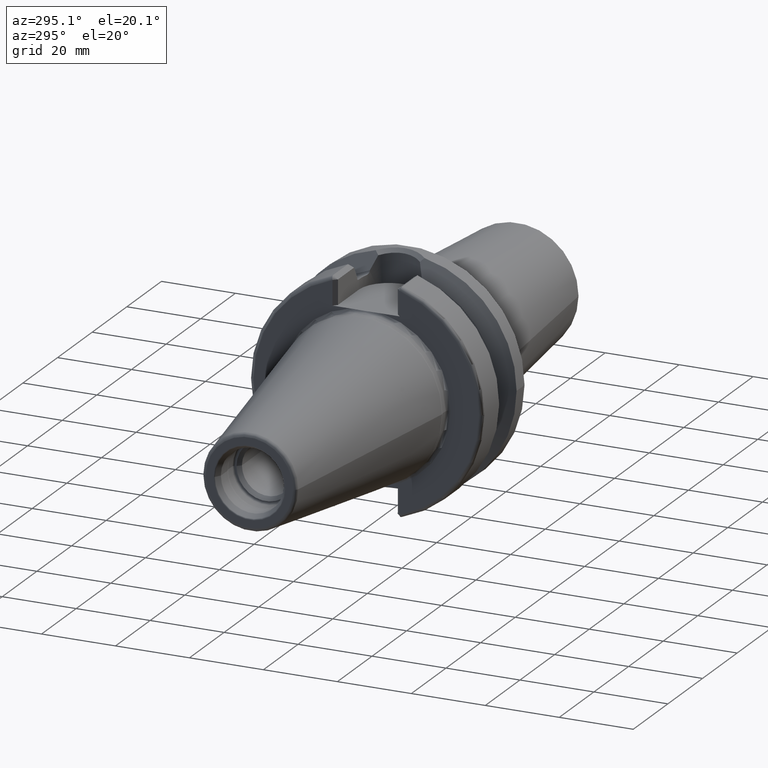
[diagram: clean part render]
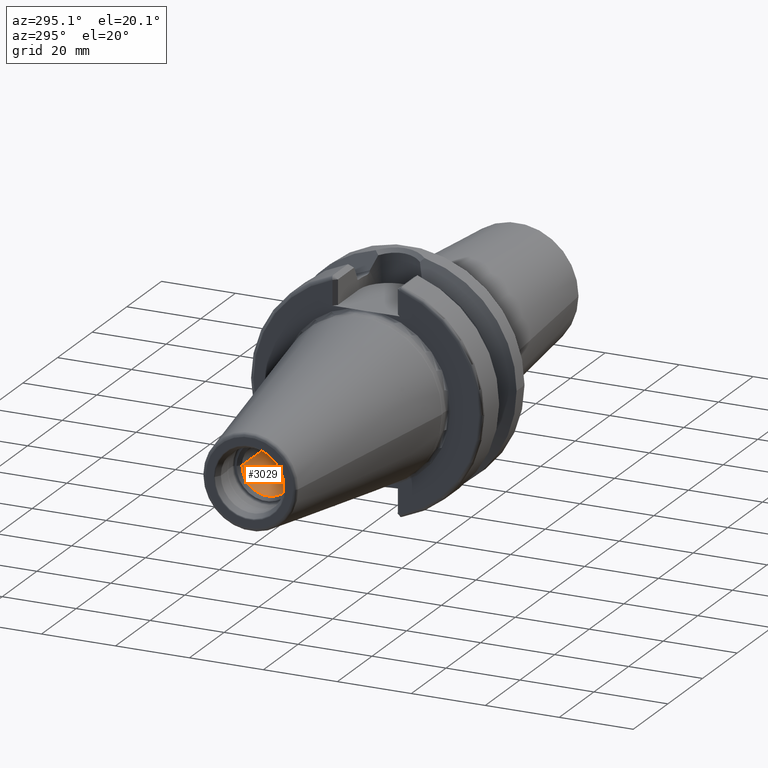
[diagram: same view with one face highlighted and labeled with its STEP entity id]
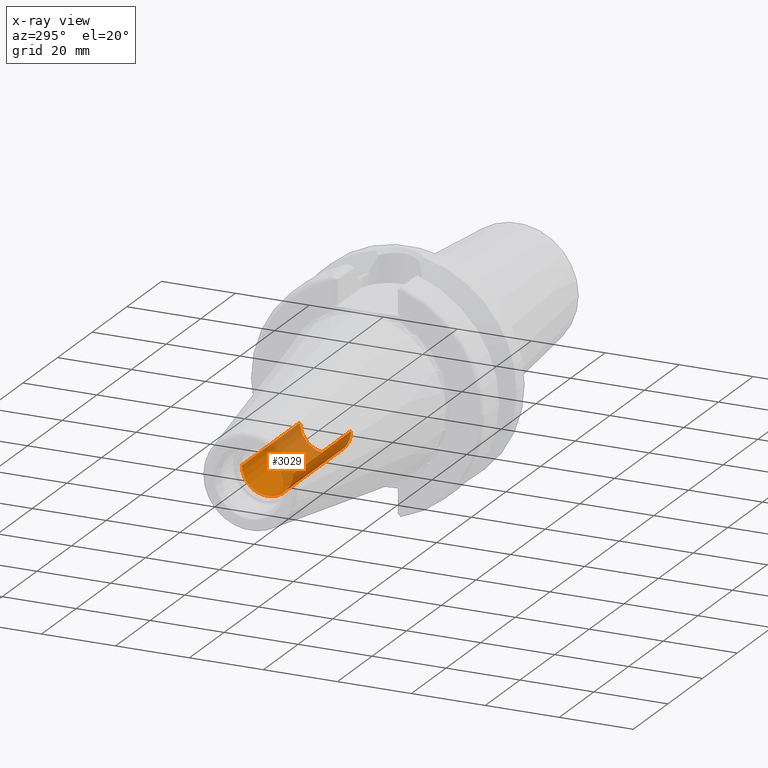
[diagram: x-ray of the same camera — body ghosted, the highlighted face saturated]
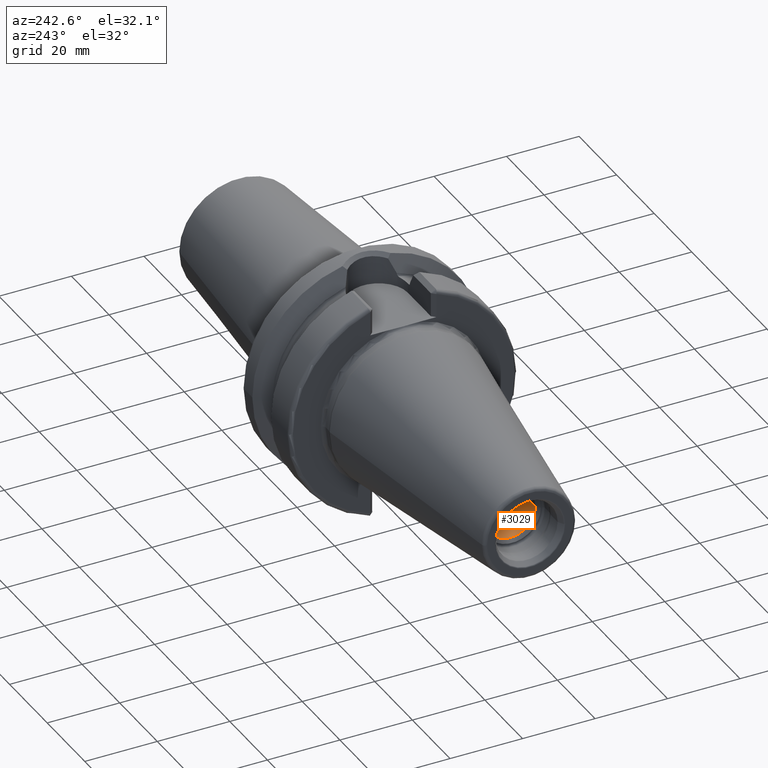
[diagram: same view with one face highlighted and labeled with its STEP entity id]
A machine part, auxiliary view. The second image highlights one B-rep face of the part: STEP entity #3029.
The next image is the same camera in x-ray: the body ghosted, the highlighted face saturated — about 47% of this face is hidden behind the body in this view.
A second angle (auxiliary view) of the same face is appended — the face is thin or edge-on in the first view.
In plain terms, the highlighted cylindrical surface (edge-blend (fillet) strip) has radius 6.92 mm, axis along (1, 0, 0).
Its self-contained STEP definition (entity closure, byte-faithful):
#1135=CARTESIAN_POINT('',(-5.495E1,0.E0,0.E0));
#1136=DIRECTION('',(-1.E0,0.E0,0.E0));
#1137=DIRECTION('',(0.E0,1.E0,0.E0));
#1138=AXIS2_PLACEMENT_3D('',#1135,#1136,#1137);
#1144=DIRECTION('',(-1.E0,0.E0,0.E0));
#1145=VECTOR('',#1144,3.355E1);
#1146=CARTESIAN_POINT('',(-2.14E1,6.92E0,0.E0));
#1147=LINE('',#1146,#1145);
#1148=CARTESIAN_POINT('',(-2.14E1,0.E0,0.E0));
#1149=DIRECTION('',(-1.E0,0.E0,0.E0));
#1150=DIRECTION('',(0.E0,1.E0,0.E0));
#1151=AXIS2_PLACEMENT_3D('',#1148,#1149,#1150);
#1153=DIRECTION('',(-1.E0,0.E0,0.E0));
#1154=VECTOR('',#1153,3.355E1);
#1155=CARTESIAN_POINT('',(-2.14E1,-6.92E0,0.E0));
#1156=LINE('',#1155,#1154);
#1255=CARTESIAN_POINT('',(-2.14E1,6.92E0,0.E0));
#1257=VERTEX_POINT('',#1255);
#1258=CARTESIAN_POINT('',(-5.495E1,6.92E0,0.E0));
#1259=VERTEX_POINT('',#1258);
#1278=CARTESIAN_POINT('',(-2.14E1,-6.92E0,0.E0));
#1279=VERTEX_POINT('',#1278);
#1280=CARTESIAN_POINT('',(-5.495E1,-6.92E0,0.E0));
#1281=VERTEX_POINT('',#1280);
#3015=CARTESIAN_POINT('',(-6.780789777418E1,0.E0,0.E0));
#3016=DIRECTION('',(1.E0,0.E0,0.E0));
#3017=DIRECTION('',(0.E0,-1.E0,0.E0));
#3018=AXIS2_PLACEMENT_3D('',#3015,#3016,#3017);
#3019=CYLINDRICAL_SURFACE('',#3018,6.92E0);
#3021=ORIENTED_EDGE('',*,*,#3020,.F.);
#3023=ORIENTED_EDGE('',*,*,#3022,.T.);
#3025=ORIENTED_EDGE('',*,*,#3024,.T.);
#3026=ORIENTED_EDGE('',*,*,#3008,.F.);
#3027=EDGE_LOOP('',(#3021,#3023,#3025,#3026));
#3028=FACE_OUTER_BOUND('',#3027,.F.);
#3029=ADVANCED_FACE('',(#3028),#3019,.F.);
#1139=CIRCLE('',#1138,6.92E0);
#1152=CIRCLE('',#1151,6.92E0);
#3008=EDGE_CURVE('',#1259,#1281,#1139,.T.);
#3020=EDGE_CURVE('',#1257,#1259,#1147,.T.);
#3022=EDGE_CURVE('',#1257,#1279,#1152,.T.);
#3024=EDGE_CURVE('',#1279,#1281,#1156,.T.);